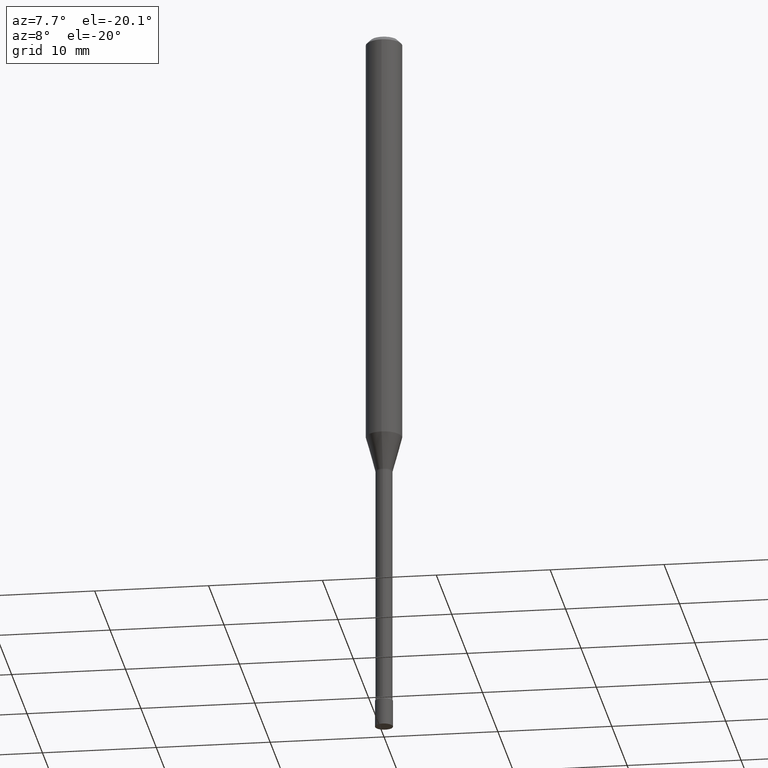
[diagram: clean part render]
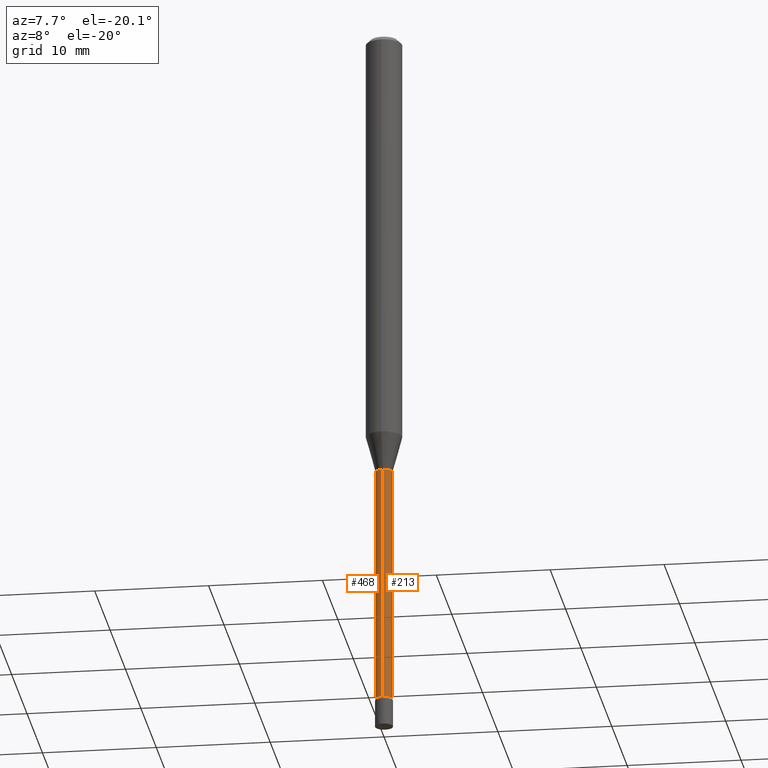
[diagram: same view with one multi-face feature highlighted, each face labeled with its STEP entity id]
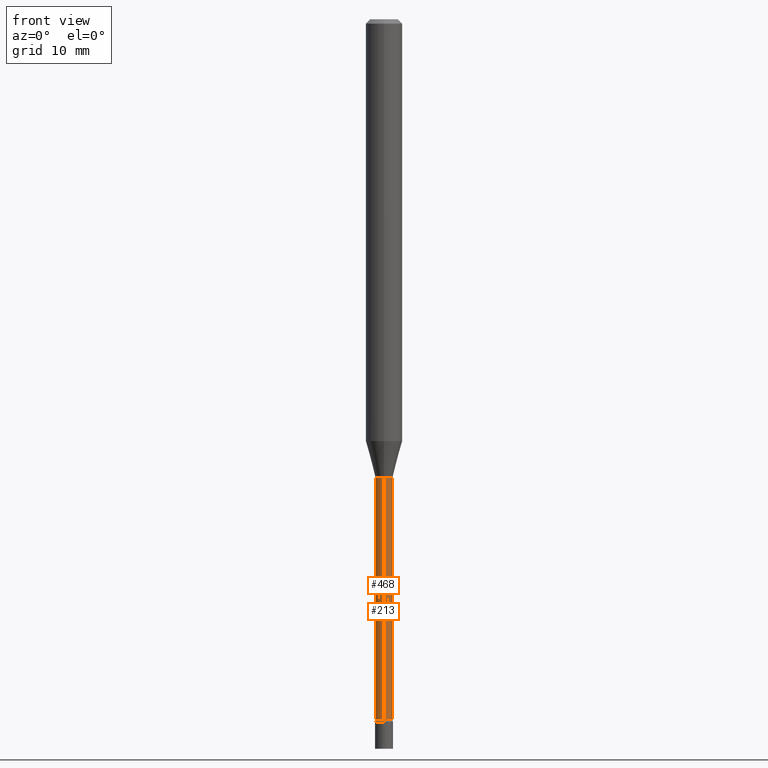
[diagram: same view with one multi-face feature highlighted, each face labeled with its STEP entity id]
A machine part, auxiliary view. The highlighted faces form ONE feature: a constant-radius fillet chain: 2 tangent blend faces with common blend radius 0.7404 mm. The faces share edges in the B-rep.
A second angle (front view) of the same feature is appended — it is thin or edge-on in the first view.
Their STEP definitions:
[1] entity #468 (Cylinder):
#2 = FACE_OUTER_BOUND ( 'NONE', #141, .T. ) ;
#5 = LINE ( 'NONE', #329, #478 ) ;
#9 = CARTESIAN_POINT ( 'NONE',  ( 5.868557853830122148E-29, -8.378853672651157378E-15, -2.399783525791634897 ) ) ;
#10 = CARTESIAN_POINT ( 'NONE',  ( 2.136957277799091056E-16, 0.02914999999999166522, -2.399783525791634897 ) ) ;
#15 = DIRECTION ( 'NONE',  ( -2.445453013056340806E-29, 3.491503955502470193E-15, 1.000000000000000000 ) ) ;
#54 = EDGE_CURVE ( 'NONE', #150, #355, #151, .T. ) ;
#57 = CARTESIAN_POINT ( 'NONE',  ( -2.035533620545162301E-16, -0.02915000000000548749, -1.571974787463811030 ) ) ;
#80 = ORIENTED_EDGE ( 'NONE', *, *, #54, .F. ) ;
#83 = CIRCLE ( 'NONE', #193, 0.02915000000000004393 ) ;
#85 = CARTESIAN_POINT ( 'NONE',  ( 2.071232074740693438E-16, 0.02915000000000002311, -1.017773403028970950E-16 ) ) ;
#96 = ORIENTED_EDGE ( 'NONE', *, *, #251, .T. ) ;
#108 = VERTEX_POINT ( 'NONE', #10 ) ;
#126 = EDGE_CURVE ( 'NONE', #108, #150, #205, .T. ) ;
#130 = DIRECTION ( 'NONE',  ( -2.445453013056340806E-29, 3.491503955502470193E-15, 1.000000000000000000 ) ) ;
#141 = EDGE_LOOP ( 'NONE', ( #242, #434, #96, #80 ) ) ;
#150 = VERTEX_POINT ( 'NONE', #280 ) ;
#151 = CIRCLE ( 'NONE', #360, 0.02914999999999999883 ) ;
#162 = CARTESIAN_POINT ( 'NONE',  ( -2.035533620544962867E-16, -0.02915000000000842612, -2.399783525791634897 ) ) ;
#193 = AXIS2_PLACEMENT_3D ( 'NONE', #9, #216, #220 ) ;
#205 = LINE ( 'NONE', #85, #489 ) ;
#216 = DIRECTION ( 'NONE',  ( -2.445453013056340806E-29, 3.491503955502470193E-15, 1.000000000000000000 ) ) ;
#220 = DIRECTION ( 'NONE',  ( -6.982962677686266711E-15, -1.000000000000000000, 0.000000000000000000 ) ) ;
#234 = VERTEX_POINT ( 'NONE', #162 ) ;
#242 = ORIENTED_EDGE ( 'NONE', *, *, #126, .F. ) ;
#251 = EDGE_CURVE ( 'NONE', #234, #355, #5, .T. ) ;
#280 = CARTESIAN_POINT ( 'NONE',  ( 2.071232074741281139E-16, 0.02914999999999451363, -1.571974787463811030 ) ) ;
#286 = CARTESIAN_POINT ( 'NONE',  ( 0.000000000000000000, 0.000000000000000000, 0.000000000000000000 ) ) ;
#296 = DIRECTION ( 'NONE',  ( -2.445453013056340806E-29, 3.491503955502470193E-15, 1.000000000000000000 ) ) ;
#328 = CYLINDRICAL_SURFACE ( 'NONE', #462, 0.02915000000000002311 ) ;
#329 = CARTESIAN_POINT ( 'NONE',  ( -2.035533620545548349E-16, -0.02915000000000002311, 1.017773403028970950E-16 ) ) ;
#333 = CARTESIAN_POINT ( 'NONE',  ( 3.844190480451977319E-29, -5.488556188380051338E-15, -1.571974787463811030 ) ) ;
#355 = VERTEX_POINT ( 'NONE', #57 ) ;
#358 = EDGE_CURVE ( 'NONE', #108, #234, #83, .T. ) ;
#360 = AXIS2_PLACEMENT_3D ( 'NONE', #333, #296, #456 ) ;
#365 = DIRECTION ( 'NONE',  ( -6.982962677686266711E-15, -1.000000000000000000, 3.491503955502470588E-15 ) ) ;
#434 = ORIENTED_EDGE ( 'NONE', *, *, #358, .T. ) ;
#456 = DIRECTION ( 'NONE',  ( -6.982962677686265922E-15, -1.000000000000000000, 0.000000000000000000 ) ) ;
#462 = AXIS2_PLACEMENT_3D ( 'NONE', #286, #15, #365 ) ;
#468 = ADVANCED_FACE ( 'NONE', ( #2 ), #328, .T. ) ;
#478 = VECTOR ( 'NONE', #486, 39.37007874015748143 ) ;
#486 = DIRECTION ( 'NONE',  ( -2.445453013056340806E-29, 3.491503955502470193E-15, 1.000000000000000000 ) ) ;
#489 = VECTOR ( 'NONE', #130, 39.37007874015748143 ) ;
[2] entity #213 (Cylinder):
#5 = LINE ( 'NONE', #329, #478 ) ;
#10 = CARTESIAN_POINT ( 'NONE',  ( 2.136957277799091056E-16, 0.02914999999999166522, -2.399783525791634897 ) ) ;
#21 = DIRECTION ( 'NONE',  ( -6.982962677686266711E-15, -1.000000000000000000, 0.000000000000000000 ) ) ;
#40 = EDGE_LOOP ( 'NONE', ( #226, #190, #145, #262 ) ) ;
#57 = CARTESIAN_POINT ( 'NONE',  ( -2.035533620545162301E-16, -0.02915000000000548749, -1.571974787463811030 ) ) ;
#67 = AXIS2_PLACEMENT_3D ( 'NONE', #443, #84, #403 ) ;
#78 = FACE_OUTER_BOUND ( 'NONE', #40, .T. ) ;
#84 = DIRECTION ( 'NONE',  ( -2.445453013056340806E-29, 3.491503955502470193E-15, 1.000000000000000000 ) ) ;
#85 = CARTESIAN_POINT ( 'NONE',  ( 2.071232074740693438E-16, 0.02915000000000002311, -1.017773403028970950E-16 ) ) ;
#108 = VERTEX_POINT ( 'NONE', #10 ) ;
#126 = EDGE_CURVE ( 'NONE', #108, #150, #205, .T. ) ;
#129 = CARTESIAN_POINT ( 'NONE',  ( 5.868557853830122148E-29, -8.378853672651157378E-15, -2.399783525791634897 ) ) ;
#130 = DIRECTION ( 'NONE',  ( -2.445453013056340806E-29, 3.491503955502470193E-15, 1.000000000000000000 ) ) ;
#135 = DIRECTION ( 'NONE',  ( -2.445453013056340806E-29, 3.491503955502470193E-15, 1.000000000000000000 ) ) ;
#142 = CIRCLE ( 'NONE', #235, 0.02915000000000004393 ) ;
#145 = ORIENTED_EDGE ( 'NONE', *, *, #334, .F. ) ;
#150 = VERTEX_POINT ( 'NONE', #280 ) ;
#158 = CYLINDRICAL_SURFACE ( 'NONE', #67, 0.02915000000000002311 ) ;
#162 = CARTESIAN_POINT ( 'NONE',  ( -2.035533620544962867E-16, -0.02915000000000842612, -2.399783525791634897 ) ) ;
#177 = CIRCLE ( 'NONE', #246, 0.02914999999999999883 ) ;
#178 = DIRECTION ( 'NONE',  ( -2.445453013056340806E-29, 3.491503955502470193E-15, 1.000000000000000000 ) ) ;
#190 = ORIENTED_EDGE ( 'NONE', *, *, #126, .T. ) ;
#205 = LINE ( 'NONE', #85, #489 ) ;
#213 = ADVANCED_FACE ( 'NONE', ( #78 ), #158, .T. ) ;
#226 = ORIENTED_EDGE ( 'NONE', *, *, #460, .T. ) ;
#234 = VERTEX_POINT ( 'NONE', #162 ) ;
#235 = AXIS2_PLACEMENT_3D ( 'NONE', #129, #178, #21 ) ;
#246 = AXIS2_PLACEMENT_3D ( 'NONE', #383, #135, #458 ) ;
#251 = EDGE_CURVE ( 'NONE', #234, #355, #5, .T. ) ;
#262 = ORIENTED_EDGE ( 'NONE', *, *, #251, .F. ) ;
#280 = CARTESIAN_POINT ( 'NONE',  ( 2.071232074741281139E-16, 0.02914999999999451363, -1.571974787463811030 ) ) ;
#329 = CARTESIAN_POINT ( 'NONE',  ( -2.035533620545548349E-16, -0.02915000000000002311, 1.017773403028970950E-16 ) ) ;
#334 = EDGE_CURVE ( 'NONE', #355, #150, #177, .T. ) ;
#355 = VERTEX_POINT ( 'NONE', #57 ) ;
#383 = CARTESIAN_POINT ( 'NONE',  ( 3.844190480451977319E-29, -5.488556188380051338E-15, -1.571974787463811030 ) ) ;
#403 = DIRECTION ( 'NONE',  ( -6.982962677686266711E-15, -1.000000000000000000, 3.491503955502470588E-15 ) ) ;
#443 = CARTESIAN_POINT ( 'NONE',  ( 0.000000000000000000, 0.000000000000000000, 0.000000000000000000 ) ) ;
#458 = DIRECTION ( 'NONE',  ( -6.982962677686265922E-15, -1.000000000000000000, 0.000000000000000000 ) ) ;
#460 = EDGE_CURVE ( 'NONE', #234, #108, #142, .T. ) ;
#478 = VECTOR ( 'NONE', #486, 39.37007874015748143 ) ;
#486 = DIRECTION ( 'NONE',  ( -2.445453013056340806E-29, 3.491503955502470193E-15, 1.000000000000000000 ) ) ;
#489 = VECTOR ( 'NONE', #130, 39.37007874015748143 ) ;